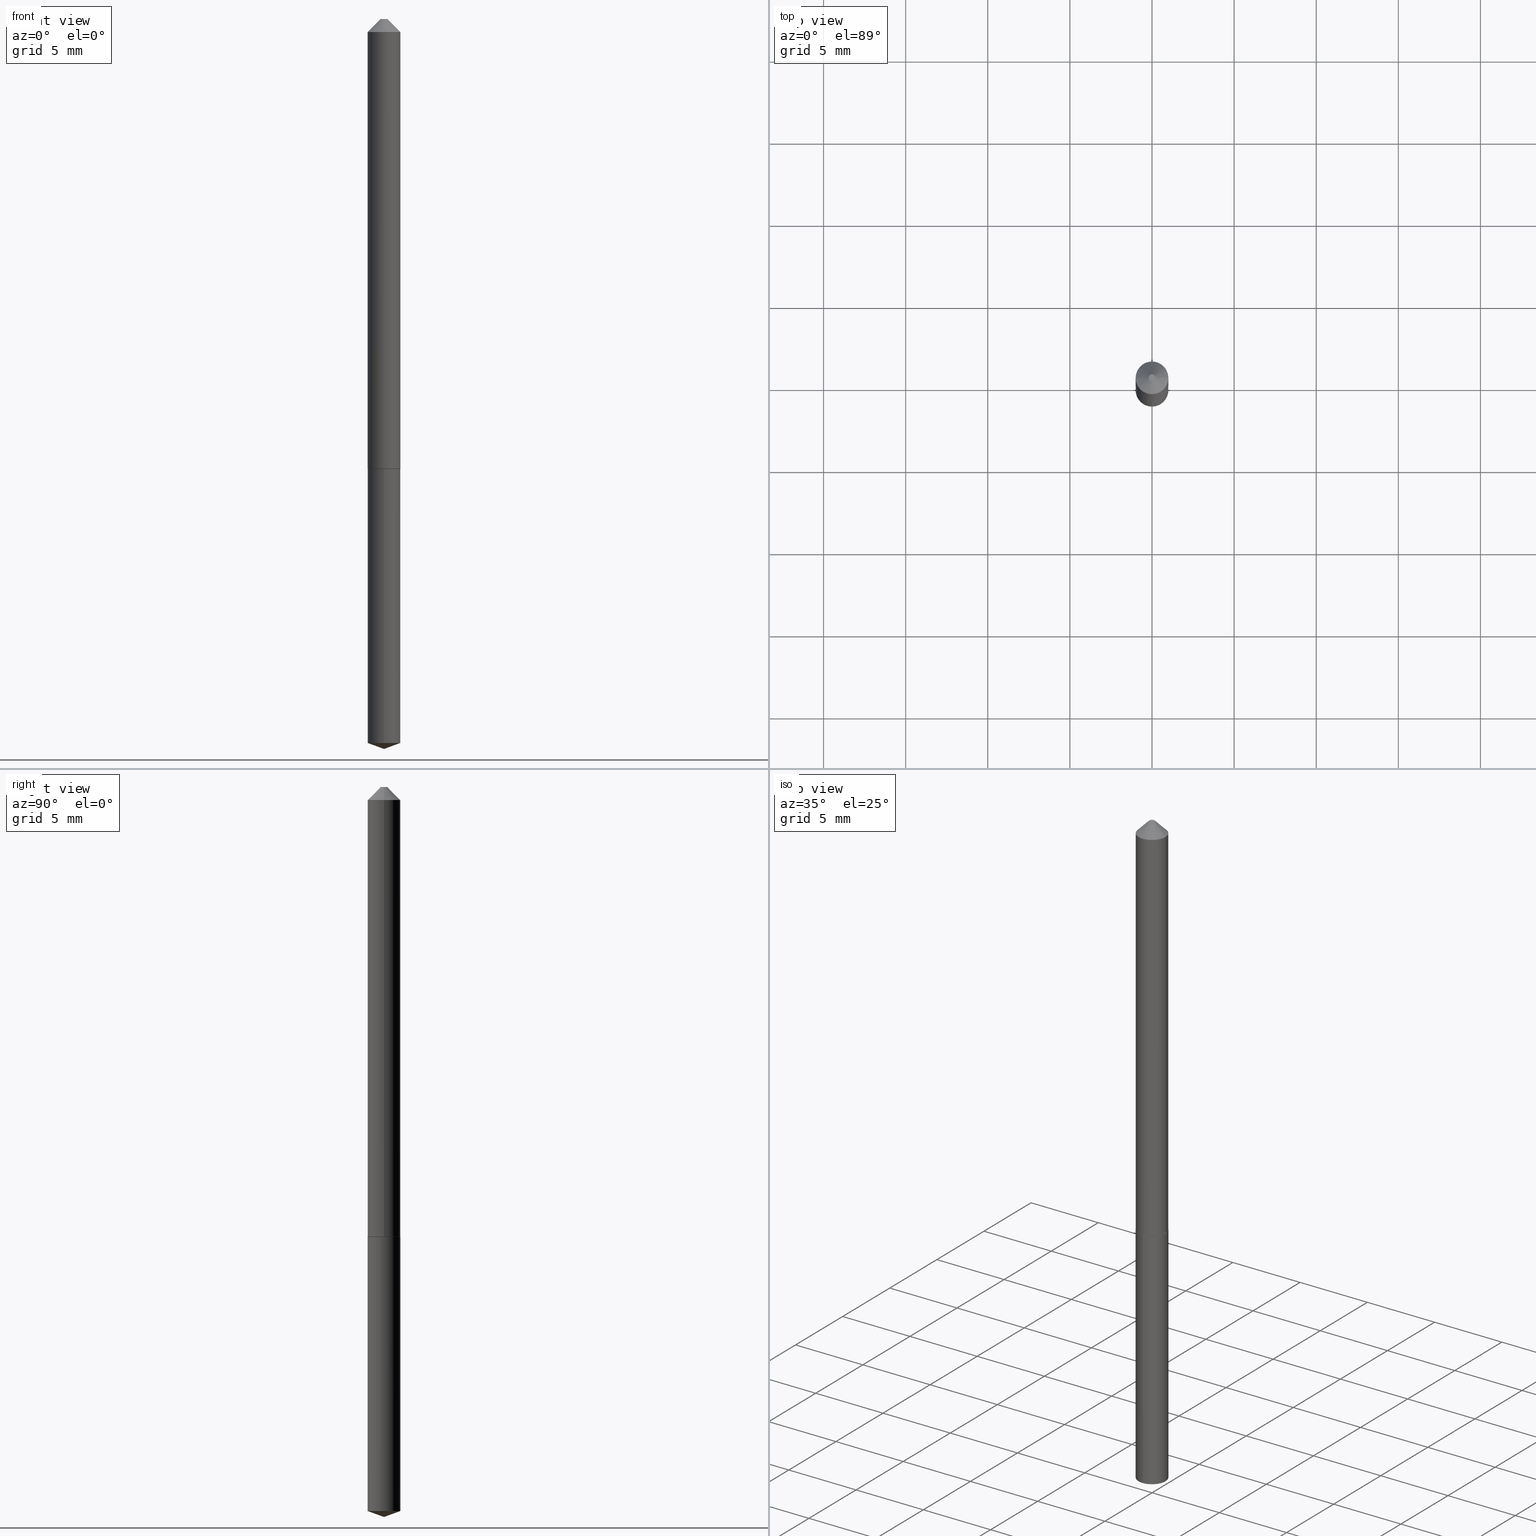
[diagram: canonical four-view strip — front | top / right | iso, engineering-drawing reading convention]
A machine part, canonical four-view strip (front | top / right | iso — engineering-drawing reading convention). The complete STEP part file that produces these views, byte-faithful:
ISO-10303-21;
HEADER;
FILE_DESCRIPTION (( 'STEP AP203' ),
    '1' );
FILE_NAME ('56047.STEP',
    '2024-04-22T20:02:25',
    ( '' ),
    ( '' ),
    'SwSTEP 2.0',
    'SolidWorks 2023',
    '' );
FILE_SCHEMA (( 'CONFIG_CONTROL_DESIGN' ));
ENDSEC;

DATA;
#1 = CARTESIAN_POINT ( 'NONE',  ( 4.279577452595067858E-29, -6.110082258758525877E-15, -1.750000000000000000 ) ) ;
#2 = DIRECTION ( 'NONE',  ( -2.445472830054324931E-29, 3.491475576433443584E-15, 1.000000000000000000 ) ) ;
#3 = AXIS2_PLACEMENT_3D ( 'NONE', #187, #189, #62 ) ;
#4 = DIRECTION ( 'NONE',  ( -0.7071067811866441621, 7.493145998870704414E-15, 0.7071067811864508723 ) ) ;
#5 = SHAPE_DEFINITION_REPRESENTATION ( #83, #373 ) ;
#6 = DIRECTION ( 'NONE',  ( 1.000000000000000000, -6.982962677686271444E-15, 0.000000000000000000 ) ) ;
#7 = APPROVAL_STATUS ( 'not_yet_approved' ) ;
#8 = FACE_OUTER_BOUND ( 'NONE', #330, .T. ) ;
#9 = EDGE_CURVE ( 'NONE', #322, #377, #338, .T. ) ;
#10 = CONICAL_SURFACE ( 'NONE', #329, 0.03925000000000000017, 0.7853981633974450594 ) ;
#11 = ORGANIZATION ( 'UNSPECIFIED', 'UNSPECIFIED', '' ) ;
#12 = FACE_OUTER_BOUND ( 'NONE', #267, .T. ) ;
#13 = PERSON_AND_ORGANIZATION_ROLE ( 'creator' ) ;
#14 = LINE ( 'NONE', #374, #354 ) ;
#15 = APPROVAL_ROLE ( '' ) ;
#16 = DIRECTION ( 'NONE',  ( -2.445472830054324931E-29, 3.491475576433443584E-15, 1.000000000000000000 ) ) ;
#17 = AXIS2_PLACEMENT_3D ( 'NONE', #348, #118, #231 ) ;
#18 = DIRECTION ( 'NONE',  ( -2.445468806185136597E-29, 3.491481338843145583E-15, 1.000000000000000000 ) ) ;
#19 = DIRECTION ( 'NONE',  ( -2.445472830054324931E-29, 3.491475576433443584E-15, 1.000000000000000000 ) ) ;
#20 = LINE ( 'NONE', #149, #75 ) ;
#21 = FACE_OUTER_BOUND ( 'NONE', #293, .T. ) ;
#22 = ORIENTED_EDGE ( 'NONE', *, *, #326, .F. ) ;
#23 = CARTESIAN_POINT ( 'NONE',  ( 2.637438107470669995E-29, -3.765562623942332293E-15, -1.078500000000000014 ) ) ;
#24 = EDGE_CURVE ( 'NONE', #352, #188, #274, .T. ) ;
#25 = FACE_OUTER_BOUND ( 'NONE', #269, .T. ) ;
#26 = ORIENTED_EDGE ( 'NONE', *, *, #119, .T. ) ;
#27 = DIRECTION ( 'NONE',  ( -6.982962677686264344E-15, -1.000000000000000000, 3.480061138425812861E-15 ) ) ;
#28 = VERTEX_POINT ( 'NONE', #40 ) ;
#29 =( LENGTH_UNIT ( ) NAMED_UNIT ( * ) SI_UNIT ( $, .METRE. ) );
#30 = AXIS2_PLACEMENT_3D ( 'NONE', #71, #223, #6 ) ;
#31 = DIRECTION ( 'NONE',  ( 1.000000000000000000, -6.982962677686266711E-15, 4.876176775795935232E-29 ) ) ;
#32 = ORIENTED_EDGE ( 'NONE', *, *, #51, .T. ) ;
#33 = ORIENTED_EDGE ( 'NONE', *, *, #144, .T. ) ;
#34 = LINE ( 'NONE', #96, #150 ) ;
#35 = EDGE_CURVE ( 'NONE', #322, #389, #38, .T. ) ;
#36 = LINE ( 'NONE', #312, #264 ) ;
#37 = COORDINATED_UNIVERSAL_TIME_OFFSET ( 5, 0, .BEHIND. ) ;
#38 = CIRCLE ( 'NONE', #30, 0.03875000000000009687 ) ;
#39 = CONICAL_SURFACE ( 'NONE', #194, 108.1684023407351560, 1.221730476396036602 ) ;
#40 = CARTESIAN_POINT ( 'NONE',  ( 2.788880237858818240E-16, 0.03924999999999394251, -1.735714168305051652 ) ) ;
#41 = CALENDAR_DATE ( 2024, 22, 4 ) ;
#42 = ADVANCED_FACE ( 'NONE', ( #43 ), #244, .T. ) ;
#43 = FACE_OUTER_BOUND ( 'NONE', #67, .T. ) ;
#44 = CARTESIAN_POINT ( 'NONE',  ( 0.000000000000000000, 0.000000000000000000, 0.000000000000000000 ) ) ;
#45 = DIRECTION ( 'NONE',  ( -6.982962677686264344E-15, -1.000000000000000000, 3.480061138425812861E-15 ) ) ;
#46 = DATE_AND_TIME ( #367, #48 ) ;
#47 = AXIS2_PLACEMENT_3D ( 'NONE', #368, #195, #45 ) ;
#48 = LOCAL_TIME ( 16, 2, 25.00000000000000000, #275 ) ;
#49 = CARTESIAN_POINT ( 'NONE',  ( 2.636215373067577193E-29, -3.763816883272910789E-15, -1.077999999999999847 ) ) ;
#50 = PERSON_AND_ORGANIZATION_ROLE ( 'design_owner' ) ;
#51 = EDGE_CURVE ( 'NONE', #389, #352, #36, .T. ) ;
#52 = CIRCLE ( 'NONE', #85, 0.03925000000000000017 ) ;
#53 = LINE ( 'NONE', #121, #82 ) ;
#54 = ORIENTED_EDGE ( 'NONE', *, *, #316, .T. ) ;
#55 = CONICAL_SURFACE ( 'NONE', #243, 108.1684023407351560, 1.221730476396036602 ) ;
#56 = CC_DESIGN_APPROVAL ( #133, ( #278 ) ) ;
#57 = ADVANCED_FACE ( 'NONE', ( #8 ), #320, .T. ) ;
#58 = VERTEX_POINT ( 'NONE', #77 ) ;
#59 = DIRECTION ( 'NONE',  ( -6.982962677686266711E-15, -1.000000000000000000, 3.475157955500665783E-15 ) ) ;
#60 = PERSON ( 'UNSPECIFIED', 'UNSPECIFIED', 'UNSPECIFIED', ('UNSPECIFIED'), ('UNSPECIFIED'), ('UNSPECIFIED') ) ;
#61 = ORIENTED_EDGE ( 'NONE', *, *, #24, .F. ) ;
#62 = DIRECTION ( 'NONE',  ( -6.982962677686264344E-15, -1.000000000000000000, 6.960122276851625723E-15 ) ) ;
#63 = VERTEX_POINT ( 'NONE', #251 ) ;
#64 = DIRECTION ( 'NONE',  ( 0.7071067811865452413, -7.319954787623248157E-15, -0.7071067811865497932 ) ) ;
#65 = DESIGN_CONTEXT ( 'detailed design', #155, 'design' ) ;
#66 = ADVANCED_FACE ( 'NONE', ( #170 ), #100, .F. ) ;
#67 = EDGE_LOOP ( 'NONE', ( #227, #131, #186, #240 ) ) ;
#68 = DIRECTION ( 'NONE',  ( 1.000000000000000000, -6.982962677686266711E-15, 0.000000000000000000 ) ) ;
#69 = CARTESIAN_POINT ( 'NONE',  ( 2.637438107470669995E-29, -3.765562623942332293E-15, -1.078500000000000014 ) ) ;
#70 = CARTESIAN_POINT ( 'NONE',  ( 4.279577528703913544E-29, -6.110082258758525877E-15, -1.750000000000000000 ) ) ;
#71 = CARTESIAN_POINT ( 'NONE',  ( 2.637438107470669434E-29, -3.765562623942332293E-15, -1.078499999999999792 ) ) ;
#72 = COORDINATED_UNIVERSAL_TIME_OFFSET ( 5, 0, .BEHIND. ) ;
#73 = DIRECTION ( 'NONE',  ( 6.982962677686265922E-15, 1.000000000000000000, -3.491475576433443584E-15 ) ) ;
#74 = CC_DESIGN_PERSON_AND_ORGANIZATION_ASSIGNMENT ( #196, #371, ( #278 ) ) ;
#75 = VECTOR ( 'NONE', #351, 39.37007874015748143 ) ;
#76 = AXIS2_PLACEMENT_3D ( 'NONE', #279, #282, #73 ) ;
#77 = CARTESIAN_POINT ( 'NONE',  ( 0.007999999999999998432, -2.166336611167769862E-16, -1.530808498924677396E-19 ) ) ;
#78 = PERSON_AND_ORGANIZATION_ROLE ( 'creator' ) ;
#79 = CARTESIAN_POINT ( 'NONE',  ( -9.199888476330237755E-28, 1.313495798900040027E-13, 37.62007874015748143 ) ) ;
#80 = DIRECTION ( 'NONE',  ( 2.438088387897960049E-29, -3.491481338843145188E-15, -1.000000000000000000 ) ) ;
#81 = DATE_AND_TIME ( #41, #104 ) ;
#82 = VECTOR ( 'NONE', #111, 39.37007874015748143 ) ;
#83 = PRODUCT_DEFINITION_SHAPE ( 'NONE', 'NONE',  #349 ) ;
#84 = ADVANCED_FACE ( 'NONE', ( #12 ), #178, .T. ) ;
#85 = AXIS2_PLACEMENT_3D ( 'NONE', #266, #363, #328 ) ;
#86 = DIRECTION ( 'NONE',  ( 1.000000000000000000, -6.982962677686265922E-15, 0.000000000000000000 ) ) ;
#87 = EDGE_LOOP ( 'NONE', ( #355, #33 ) ) ;
#88 = VERTEX_POINT ( 'NONE', #1 ) ;
#89 = CARTESIAN_POINT ( 'NONE',  ( -9.199888476330237755E-28, 1.313495798900040027E-13, 37.62007874015748143 ) ) ;
#90 = CLOSED_SHELL ( 'NONE', ( #314, #147, #84, #165, #158, #94, #57, #66 ) ) ;
#91 = ORIENTED_EDGE ( 'NONE', *, *, #316, .F. ) ;
#92 = CARTESIAN_POINT ( 'NONE',  ( 7.642090019328601786E-31, -1.091087918388490144E-16, -0.03125000000000020123 ) ) ;
#93 = ORIENTED_EDGE ( 'NONE', *, *, #259, .F. ) ;
#94 = ADVANCED_FACE ( 'NONE', ( #225 ), #173, .T. ) ;
#95 = ORIENTED_EDGE ( 'NONE', *, *, #357, .T. ) ;
#96 = CARTESIAN_POINT ( 'NONE',  ( 4.279568773109228849E-29, -6.110094688276253525E-15, -1.750000000000000000 ) ) ;
#97 = AXIS2_PLACEMENT_3D ( 'NONE', #289, #18, #31 ) ;
#98 = DIRECTION ( 'NONE',  ( 1.000000000000000000, -6.982962677686265922E-15, 0.000000000000000000 ) ) ;
#99 = DIRECTION ( 'NONE',  ( -1.000000000000000000, 6.982962677686266711E-15, 0.000000000000000000 ) ) ;
#100 = PLANE ( 'NONE',  #292 ) ;
#101 = ADVANCED_FACE ( 'NONE', ( #310 ), #276, .T. ) ;
#102 = CARTESIAN_POINT ( 'NONE',  ( 0.000000000000000000, 0.000000000000000000, 0.000000000000000000 ) ) ;
#103 = CIRCLE ( 'NONE', #174, 0.03925000000000000017 ) ;
#104 = LOCAL_TIME ( 16, 2, 25.00000000000000000, #191 ) ;
#105 = CARTESIAN_POINT ( 'NONE',  ( -0.03925000000000006956, 2.788880237858398172E-16, -1.930682022925053676E-30 ) ) ;
#106 = APPROVAL_ROLE ( '' ) ;
#107 = PRODUCT ( '56047', '56047', '', ( #281 ) ) ;
#108 = DIRECTION ( 'NONE',  ( -2.445468806185136597E-29, 3.491481338843145583E-15, 1.000000000000000000 ) ) ;
#109 = PERSON_AND_ORGANIZATION ( #60, #11 ) ;
#110 = EDGE_CURVE ( 'NONE', #352, #377, #378, .T. ) ;
#111 = DIRECTION ( 'NONE',  ( -2.445468806185136877E-29, 3.491481338843145188E-15, 1.000000000000000000 ) ) ;
#112 = CALENDAR_DATE ( 2024, 22, 4 ) ;
#113 = CLOSED_SHELL ( 'NONE', ( #101, #379, #190, #42, #200 ) ) ;
#114 = DIRECTION ( 'NONE',  ( -6.982962677686266711E-15, -1.000000000000000000, 3.475157955500665783E-15 ) ) ;
#115 = APPROVAL_PERSON_ORGANIZATION ( #171, #172, #336 ) ;
#116 = ORIENTED_EDGE ( 'NONE', *, *, #51, .F. ) ;
#117 = DIRECTION ( 'NONE',  ( 1.000000000000000000, -6.982962677686265922E-15, 4.876176775795935793E-29 ) ) ;
#118 = DIRECTION ( 'NONE',  ( -2.445468806185136597E-29, 3.491481338843145583E-15, 1.000000000000000000 ) ) ;
#119 = EDGE_CURVE ( 'NONE', #63, #188, #14, .T. ) ;
#120 = DIRECTION ( 'NONE',  ( -0.7071067811865452413, 2.468850131082233000E-15, -0.7071067811865497932 ) ) ;
#121 = CARTESIAN_POINT ( 'NONE',  ( 0.03925000000000006956, -2.740812850991864634E-16, 1.913899384499908036E-30 ) ) ;
#122 = EDGE_CURVE ( 'NONE', #28, #210, #285, .T. ) ;
#123 = VERTEX_POINT ( 'NONE', #317 ) ;
#124 = CARTESIAN_POINT ( 'NONE',  ( 3.743544432386673062E-48, -5.344789307371237567E-34, -1.530808498934197508E-19 ) ) ;
#125 = ORIENTED_EDGE ( 'NONE', *, *, #222, .T. ) ;
#126 = CARTESIAN_POINT ( 'NONE',  ( -0.03925000000000013201, -3.484928859487070232E-15, -1.077999999999999847 ) ) ;
#127 = CONICAL_SURFACE ( 'NONE', #257, 0.03925000000000013201, 0.7853981633975849475 ) ;
#128 = ORIENTED_EDGE ( 'NONE', *, *, #253, .T. ) ;
#129 = DIRECTION ( 'NONE',  ( 6.676917655467982329E-15, 0.9396926207859115365, 0.3420201433256599421 ) ) ;
#130 = CC_DESIGN_SECURITY_CLASSIFICATION ( #278, ( #258 ) ) ;
#131 = ORIENTED_EDGE ( 'NONE', *, *, #122, .T. ) ;
#132 =( CONVERSION_BASED_UNIT ( 'INCH', #388 ) LENGTH_UNIT ( ) NAMED_UNIT ( #167 ) );
#133 = APPROVAL ( #7, 'UNSPECIFIED' ) ;
#134 = ORIENTED_EDGE ( 'NONE', *, *, #242, .T. ) ;
#135 = DIRECTION ( 'NONE',  ( -2.445468806185136597E-29, 3.491481338843145583E-15, 1.000000000000000000 ) ) ;
#136 = DIRECTION ( 'NONE',  ( 1.000000000000000000, -6.982962677686266711E-15, 0.000000000000000000 ) ) ;
#137 = CIRCLE ( 'NONE', #175, 0.03925000000000000017 ) ;
#138 = EDGE_CURVE ( 'NONE', #377, #233, #53, .T. ) ;
#139 = PLANE ( 'NONE',  #76 ) ;
#140 = CARTESIAN_POINT ( 'NONE',  ( 7.642090019328601786E-31, -1.091087918388490144E-16, -0.03125000000000020123 ) ) ;
#141 = APPROVAL_DATE_TIME ( #272, #133 ) ;
#142 = PERSON_AND_ORGANIZATION ( #60, #11 ) ;
#143 = CALENDAR_DATE ( 2024, 22, 4 ) ;
#144 = EDGE_CURVE ( 'NONE', #58, #63, #193, .T. ) ;
#145 = PERSON_AND_ORGANIZATION_ROLE ( 'design_supplier' ) ;
#146 = CIRCLE ( 'NONE', #211, 0.007999999999999998432 ) ;
#147 = ADVANCED_FACE ( 'NONE', ( #340 ), #176, .T. ) ;
#148 = CARTESIAN_POINT ( 'NONE',  ( 4.244637499587423972E-29, -6.060209841065438643E-15, -1.735714168305051652 ) ) ;
#149 = CARTESIAN_POINT ( 'NONE',  ( 2.788880237858656524E-16, 0.03924999999999623235, -1.078500000000000014 ) ) ;
#150 = VECTOR ( 'NONE', #164, 39.37007874015748143 ) ;
#151 = CIRCLE ( 'NONE', #3, 0.03925000000000000017 ) ;
#152 = APPROVAL ( #226, 'UNSPECIFIED' ) ;
#153 = EDGE_LOOP ( 'NONE', ( #134, #387 ) ) ;
#154 = DIRECTION ( 'NONE',  ( 1.000000000000000000, -6.982962677686271444E-15, 0.000000000000000000 ) ) ;
#155 = APPLICATION_CONTEXT ( 'configuration controlled 3d designs of mechanical parts and assemblies' ) ;
#156 = ORIENTED_EDGE ( 'NONE', *, *, #144, .F. ) ;
#157 = CARTESIAN_POINT ( 'NONE',  ( -0.03875000000000009687, -3.487578086661181433E-15, -1.078499999999999792 ) ) ;
#158 = ADVANCED_FACE ( 'NONE', ( #21 ), #127, .T. ) ;
#159 = CIRCLE ( 'NONE', #366, 0.03925000000000000017 ) ;
#160 = ORIENTED_EDGE ( 'NONE', *, *, #273, .T. ) ;
#161 = ORIENTED_EDGE ( 'NONE', *, *, #273, .F. ) ;
#162 = CARTESIAN_POINT ( 'NONE',  ( 0.03925000000000013201, -4.037898168372097104E-15, -1.077999999999999847 ) ) ;
#163 = ORIENTED_EDGE ( 'NONE', *, *, #24, .T. ) ;
#164 = DIRECTION ( 'NONE',  ( -6.561838499445214262E-15, -0.9396926207859092051, 0.3420201433256664925 ) ) ;
#165 = ADVANCED_FACE ( 'NONE', ( #25 ), #375, .F. ) ;
#166 = CALENDAR_DATE ( 2024, 22, 4 ) ;
#167 = DIMENSIONAL_EXPONENTS ( 1.000000000000000000, 0.000000000000000000, 0.000000000000000000, 0.000000000000000000, 0.000000000000000000, 0.000000000000000000, 0.000000000000000000 ) ;
#168 = DATE_AND_TIME ( #112, #179 ) ;
#169 = DIRECTION ( 'NONE',  ( 1.000000000000000000, -6.982962677686266711E-15, 4.876176775795935232E-29 ) ) ;
#170 = FACE_OUTER_BOUND ( 'NONE', #87, .T. ) ;
#171 = PERSON_AND_ORGANIZATION ( #60, #11 ) ;
#172 = APPROVAL ( #333, 'UNSPECIFIED' ) ;
#173 = CYLINDRICAL_SURFACE ( 'NONE', #299, 0.03925000000000006956 ) ;
#174 = AXIS2_PLACEMENT_3D ( 'NONE', #23, #2, #27 ) ;
#175 = AXIS2_PLACEMENT_3D ( 'NONE', #381, #332, #68 ) ;
#176 = CYLINDRICAL_SURFACE ( 'NONE', #97, 0.03925000000000006956 ) ;
#177 = EDGE_CURVE ( 'NONE', #63, #58, #146, .T. ) ;
#178 = CONICAL_SURFACE ( 'NONE', #286, 0.03925000000000013201, 0.7853981633975849475 ) ;
#179 = LOCAL_TIME ( 16, 2, 25.00000000000000000, #72 ) ;
#180 = ORIENTED_EDGE ( 'NONE', *, *, #138, .F. ) ;
#181 = EDGE_LOOP ( 'NONE', ( #319, #163, #161, #180 ) ) ;
#182 = CARTESIAN_POINT ( 'NONE',  ( -2.740812850991435691E-16, -0.03925000000000607864, -1.735714168305051430 ) ) ;
#183 = CC_DESIGN_PERSON_AND_ORGANIZATION_ASSIGNMENT ( #252, #78, ( #258 ) ) ;
#184 = ORIENTED_EDGE ( 'NONE', *, *, #268, .F. ) ;
#185 = VECTOR ( 'NONE', #129, 39.37007874015748143 ) ;
#186 = ORIENTED_EDGE ( 'NONE', *, *, #326, .T. ) ;
#187 = CARTESIAN_POINT ( 'NONE',  ( 4.244637499587423972E-29, -6.060209841065438643E-15, -1.735714168305051652 ) ) ;
#188 = VERTEX_POINT ( 'NONE', #337 ) ;
#189 = DIRECTION ( 'NONE',  ( -2.445472830054324931E-29, 3.491475576433443584E-15, 1.000000000000000000 ) ) ;
#190 = ADVANCED_FACE ( 'NONE', ( #280 ), #55, .T. ) ;
#191 = COORDINATED_UNIVERSAL_TIME_OFFSET ( 5, 0, .BEHIND. ) ;
#192 = APPLICATION_PROTOCOL_DEFINITION ( 'international standard', 'config_control_design', 1994, #155 ) ;
#193 = CIRCLE ( 'NONE', #17, 0.007999999999999998432 ) ;
#194 = AXIS2_PLACEMENT_3D ( 'NONE', #89, #323, #59 ) ;
#195 = DIRECTION ( 'NONE',  ( -2.445472830054324931E-29, 3.491475576433443584E-15, 1.000000000000000000 ) ) ;
#196 = PERSON_AND_ORGANIZATION ( #60, #11 ) ;
#197 = PERSON_AND_ORGANIZATION ( #60, #11 ) ;
#198 = LOCAL_TIME ( 16, 2, 25.00000000000000000, #306 ) ;
#199 = ORIENTED_EDGE ( 'NONE', *, *, #357, .F. ) ;
#200 = ADVANCED_FACE ( 'NONE', ( #343 ), #139, .F. ) ;
#201 = ORIENTED_EDGE ( 'NONE', *, *, #35, .T. ) ;
#202 = ORIENTED_EDGE ( 'NONE', *, *, #259, .T. ) ;
#203 = AXIS2_PLACEMENT_3D ( 'NONE', #148, #376, #370 ) ;
#204 = CARTESIAN_POINT ( 'NONE',  ( 2.636215373067577193E-29, -3.763816883272910789E-15, -1.077999999999999847 ) ) ;
#205 = ORIENTED_EDGE ( 'NONE', *, *, #345, .F. ) ;
#206 = DIRECTION ( 'NONE',  ( -2.445468806185136597E-29, 3.491481338843145583E-15, 1.000000000000000000 ) ) ;
#207 = EDGE_CURVE ( 'NONE', #28, #350, #20, .T. ) ;
#208 = ORIENTED_EDGE ( 'NONE', *, *, #242, .F. ) ;
#209 = CARTESIAN_POINT ( 'NONE',  ( 0.03875000000000009687, -4.036152427702675601E-15, -1.078499999999999792 ) ) ;
#210 = VERTEX_POINT ( 'NONE', #182 ) ;
#211 = AXIS2_PLACEMENT_3D ( 'NONE', #124, #369, #284 ) ;
#212 = ORIENTED_EDGE ( 'NONE', *, *, #9, .F. ) ;
#213 = CARTESIAN_POINT ( 'NONE',  ( -2.740812850991594942E-16, -0.03925000000000376105, -1.078499999999999792 ) ) ;
#214 = CC_DESIGN_DATE_AND_TIME_ASSIGNMENT ( #224, #339, ( #349 ) ) ;
#215 = CARTESIAN_POINT ( 'NONE',  ( 1.871772216193336531E-48, -2.672394653685618784E-34, -7.654042494670987541E-20 ) ) ;
#216 = CARTESIAN_POINT ( 'NONE',  ( 0.03925000000000000017, -3.831900769380349724E-16, -0.03125000000000020123 ) ) ;
#217 = CARTESIAN_POINT ( 'NONE',  ( 0.03925000000000013201, -4.037898168372097104E-15, -1.077999999999999847 ) ) ;
#218 = DIRECTION ( 'NONE',  ( 1.000000000000000000, 0.000000000000000000, 0.000000000000000000 ) ) ;
#219 = APPROVAL_DATE_TIME ( #46, #172 ) ;
#220 = AXIS2_PLACEMENT_3D ( 'NONE', #270, #236, #239 ) ;
#221 = AXIS2_PLACEMENT_3D ( 'NONE', #44, #308, #218 ) ;
#222 = EDGE_CURVE ( 'NONE', #58, #233, #304, .T. ) ;
#223 = DIRECTION ( 'NONE',  ( -2.445468806185136597E-29, 3.491481338843145583E-15, 1.000000000000000000 ) ) ;
#224 = DATE_AND_TIME ( #143, #198 ) ;
#225 = FACE_OUTER_BOUND ( 'NONE', #358, .T. ) ;
#226 = APPROVAL_STATUS ( 'not_yet_approved' ) ;
#227 = ORIENTED_EDGE ( 'NONE', *, *, #207, .F. ) ;
#228 = AXIS2_PLACEMENT_3D ( 'NONE', #256, #344, #86 ) ;
#229 = AXIS2_PLACEMENT_3D ( 'NONE', #294, #206, #154 ) ;
#230 = DIRECTION ( 'NONE',  ( -6.982962677686264344E-15, -1.000000000000000000, 3.480061138425812861E-15 ) ) ;
#231 = DIRECTION ( 'NONE',  ( 1.000000000000000000, -6.982962677686266711E-15, 4.876357825096174133E-29 ) ) ;
#232 = EDGE_LOOP ( 'NONE', ( #156, #125, #160, #301 ) ) ;
#233 = VERTEX_POINT ( 'NONE', #216 ) ;
#234 = FACE_OUTER_BOUND ( 'NONE', #232, .T. ) ;
#235 = ORIENTED_EDGE ( 'NONE', *, *, #9, .T. ) ;
#236 = DIRECTION ( 'NONE',  ( -2.445468806185136597E-29, 3.491481338843145583E-15, 1.000000000000000000 ) ) ;
#237 = MANIFOLD_SOLID_BREP ( 'Body-Move/Copy2[2]', #90 ) ;
#238 = ORIENTED_EDGE ( 'NONE', *, *, #110, .T. ) ;
#239 = DIRECTION ( 'NONE',  ( 1.000000000000000000, -6.982962677686265922E-15, 0.000000000000000000 ) ) ;
#240 = ORIENTED_EDGE ( 'NONE', *, *, #288, .F. ) ;
#241 =( NAMED_UNIT ( * ) SI_UNIT ( $, .STERADIAN. ) SOLID_ANGLE_UNIT ( ) );
#242 = EDGE_CURVE ( 'NONE', #123, #350, #103, .T. ) ;
#243 = AXIS2_PLACEMENT_3D ( 'NONE', #79, #16, #114 ) ;
#244 = CYLINDRICAL_SURFACE ( 'NONE', #47, 0.03925000000000000017 ) ;
#245 = LINE ( 'NONE', #70, #185 ) ;
#246 = CC_DESIGN_APPROVAL ( #172, ( #349 ) ) ;
#247 = DIRECTION ( 'NONE',  ( 2.445468806185136597E-29, -3.491481338843145583E-15, -1.000000000000000000 ) ) ;
#248 = CC_DESIGN_PERSON_AND_ORGANIZATION_ASSIGNMENT ( #109, #50, ( #107 ) ) ;
#249 = APPROVAL_DATE_TIME ( #81, #152 ) ;
#250 = VECTOR ( 'NONE', #305, 39.37007874015748143 ) ;
#251 = CARTESIAN_POINT ( 'NONE',  ( -0.007999999999999998432, 1.104180973409135397E-16, -1.530808498940009002E-19 ) ) ;
#252 = PERSON_AND_ORGANIZATION ( #60, #11 ) ;
#253 = EDGE_CURVE ( 'NONE', #88, #210, #34, .T. ) ;
#254 = SECURITY_CLASSIFICATION_LEVEL ( 'unclassified' ) ;
#255 = AXIS2_PLACEMENT_3D ( 'NONE', #140, #247, #364 ) ;
#256 = CARTESIAN_POINT ( 'NONE',  ( 2.636215373067577193E-29, -3.763816883272910789E-15, -1.077999999999999847 ) ) ;
#257 = AXIS2_PLACEMENT_3D ( 'NONE', #204, #382, #295 ) ;
#258 = PRODUCT_DEFINITION_FORMATION_WITH_SPECIFIED_SOURCE ( 'ANY', '', #107, .NOT_KNOWN. ) ;
#259 = EDGE_CURVE ( 'NONE', #88, #28, #245, .T. ) ;
#260 = ORIENTED_EDGE ( 'NONE', *, *, #253, .F. ) ;
#261 = LINE ( 'NONE', #213, #347 ) ;
#262 = CARTESIAN_POINT ( 'NONE',  ( 2.637438107470669995E-29, -3.765562623942332293E-15, -1.078500000000000014 ) ) ;
#263 = ORIENTED_EDGE ( 'NONE', *, *, #222, .F. ) ;
#264 = VECTOR ( 'NONE', #4, 39.37007874015748143 ) ;
#265 = ORIENTED_EDGE ( 'NONE', *, *, #35, .F. ) ;
#266 = CARTESIAN_POINT ( 'NONE',  ( 2.637438107470669995E-29, -3.765562623942332293E-15, -1.078500000000000014 ) ) ;
#267 = EDGE_LOOP ( 'NONE', ( #201, #32, #184, #212 ) ) ;
#268 = EDGE_CURVE ( 'NONE', #377, #352, #318, .T. ) ;
#269 = EDGE_LOOP ( 'NONE', ( #265, #91 ) ) ;
#270 = CARTESIAN_POINT ( 'NONE',  ( 2.636215373067577193E-29, -3.763816883272910789E-15, -1.077999999999999847 ) ) ;
#271 = DIRECTION ( 'NONE',  ( 0.7071067811866441621, -2.468850131083269169E-15, 0.7071067811864508723 ) ) ;
#272 = DATE_AND_TIME ( #166, #300 ) ;
#273 = EDGE_CURVE ( 'NONE', #233, #188, #159, .T. ) ;
#274 = LINE ( 'NONE', #105, #250 ) ;
#275 = COORDINATED_UNIVERSAL_TIME_OFFSET ( 5, 0, .BEHIND. ) ;
#276 = CYLINDRICAL_SURFACE ( 'NONE', #385, 0.03925000000000000017 ) ;
#277 = APPLICATION_PROTOCOL_DEFINITION ( 'international standard', 'config_control_design', 1994, #315 ) ;
#278 = SECURITY_CLASSIFICATION ( '', '', #254 ) ;
#279 = CARTESIAN_POINT ( 'NONE',  ( 2.637438107470669995E-29, -3.765562623942332293E-15, -1.078500000000000014 ) ) ;
#280 = FACE_OUTER_BOUND ( 'NONE', #360, .T. ) ;
#281 = MECHANICAL_CONTEXT ( 'NONE', #315, 'mechanical' ) ;
#282 = DIRECTION ( 'NONE',  ( 2.445472830054324650E-29, -3.491475576433443584E-15, -1.000000000000000000 ) ) ;
#283 = CC_DESIGN_PERSON_AND_ORGANIZATION_ASSIGNMENT ( #142, #13, ( #349 ) ) ;
#284 = DIRECTION ( 'NONE',  ( 1.000000000000000000, -6.982962677686266711E-15, 4.876357825096174133E-29 ) ) ;
#285 = CIRCLE ( 'NONE', #203, 0.03925000000000000017 ) ;
#286 = AXIS2_PLACEMENT_3D ( 'NONE', #49, #108, #98 ) ;
#287 = CC_DESIGN_APPROVAL ( #152, ( #258 ) ) ;
#288 = EDGE_CURVE ( 'NONE', #350, #123, #52, .T. ) ;
#289 = CARTESIAN_POINT ( 'NONE',  ( 0.000000000000000000, 0.000000000000000000, 0.000000000000000000 ) ) ;
#290 = ORIENTED_EDGE ( 'NONE', *, *, #122, .F. ) ;
#291 = PRODUCT_RELATED_PRODUCT_CATEGORY ( 'detail', '', ( #107 ) ) ;
#292 = AXIS2_PLACEMENT_3D ( 'NONE', #215, #80, #362 ) ;
#293 = EDGE_LOOP ( 'NONE', ( #116, #54, #235, #296 ) ) ;
#294 = CARTESIAN_POINT ( 'NONE',  ( 2.637438107470669434E-29, -3.765562623942332293E-15, -1.078499999999999792 ) ) ;
#295 = DIRECTION ( 'NONE',  ( 1.000000000000000000, -6.982962677686265922E-15, 0.000000000000000000 ) ) ;
#296 = ORIENTED_EDGE ( 'NONE', *, *, #110, .F. ) ;
#297 = DIRECTION ( 'NONE',  ( -2.445468806185136597E-29, 3.491481338843145583E-15, 1.000000000000000000 ) ) ;
#298 = EDGE_LOOP ( 'NONE', ( #95, #327, #208, #22 ) ) ;
#299 = AXIS2_PLACEMENT_3D ( 'NONE', #102, #135, #169 ) ;
#300 = LOCAL_TIME ( 16, 2, 25.00000000000000000, #37 ) ;
#301 = ORIENTED_EDGE ( 'NONE', *, *, #119, .F. ) ;
#302 =( NAMED_UNIT ( * ) PLANE_ANGLE_UNIT ( ) SI_UNIT ( $, .RADIAN. ) );
#303 = ORIENTED_EDGE ( 'NONE', *, *, #138, .T. ) ;
#304 = LINE ( 'NONE', #359, #334 ) ;
#305 = DIRECTION ( 'NONE',  ( -2.445468806185136877E-29, 3.491481338843145188E-15, 1.000000000000000000 ) ) ;
#306 = COORDINATED_UNIVERSAL_TIME_OFFSET ( 5, 0, .BEHIND. ) ;
#307 = AXIS2_PLACEMENT_3D ( 'NONE', #262, #372, #117 ) ;
#308 = DIRECTION ( 'NONE',  ( 0.000000000000000000, 0.000000000000000000, 1.000000000000000000 ) ) ;
#309 = APPROVAL_PERSON_ORGANIZATION ( #311, #133, #106 ) ;
#310 = FACE_OUTER_BOUND ( 'NONE', #298, .T. ) ;
#311 = PERSON_AND_ORGANIZATION ( #60, #11 ) ;
#312 = CARTESIAN_POINT ( 'NONE',  ( -0.03925000000000013201, -3.484928859487070232E-15, -1.077999999999999847 ) ) ;
#313 = PERSON_AND_ORGANIZATION ( #60, #11 ) ;
#314 = ADVANCED_FACE ( 'NONE', ( #234 ), #10, .T. ) ;
#315 = APPLICATION_CONTEXT ( 'configuration controlled 3d designs of mechanical parts and assemblies' ) ;
#316 = EDGE_CURVE ( 'NONE', #389, #322, #346, .T. ) ;
#317 = CARTESIAN_POINT ( 'NONE',  ( -2.740812850991594942E-16, -0.03925000000000376105, -1.078499999999999792 ) ) ;
#318 = CIRCLE ( 'NONE', #220, 0.03925000000000013201 ) ;
#319 = ORIENTED_EDGE ( 'NONE', *, *, #268, .T. ) ;
#320 = CONICAL_SURFACE ( 'NONE', #255, 0.03925000000000000017, 0.7853981633974450594 ) ;
#321 = UNCERTAINTY_MEASURE_WITH_UNIT (LENGTH_MEASURE( 1.000000000000000082E-05 ), #132, 'distance_accuracy_value', 'NONE');
#322 = VERTEX_POINT ( 'NONE', #209 ) ;
#323 = DIRECTION ( 'NONE',  ( -2.445472830054324931E-29, 3.491475576433443584E-15, 1.000000000000000000 ) ) ;
#324 = EDGE_LOOP ( 'NONE', ( #260, #202, #199 ) ) ;
#325 = CARTESIAN_POINT ( 'NONE',  ( 2.788880237858818240E-16, 0.03924999999999623235, -1.078500000000000014 ) ) ;
#326 = EDGE_CURVE ( 'NONE', #210, #123, #261, .T. ) ;
#327 = ORIENTED_EDGE ( 'NONE', *, *, #207, .T. ) ;
#328 = DIRECTION ( 'NONE',  ( -6.982962677686264344E-15, -1.000000000000000000, 3.480061138425812861E-15 ) ) ;
#329 = AXIS2_PLACEMENT_3D ( 'NONE', #92, #390, #99 ) ;
#330 = EDGE_LOOP ( 'NONE', ( #263, #380, #26, #384 ) ) ;
#331 = DIRECTION ( 'NONE',  ( -2.445472830054324931E-29, 3.491475576433443584E-15, 1.000000000000000000 ) ) ;
#332 = DIRECTION ( 'NONE',  ( -2.445468806185136597E-29, 3.491481338843145583E-15, 1.000000000000000000 ) ) ;
#333 = APPROVAL_STATUS ( 'not_yet_approved' ) ;
#334 = VECTOR ( 'NONE', #64, 39.37007874015748143 ) ;
#335 = APPROVAL_PERSON_ORGANIZATION ( #313, #152, #15 ) ;
#336 = APPROVAL_ROLE ( '' ) ;
#337 = CARTESIAN_POINT ( 'NONE',  ( -0.03925000000000000017, -1.657574813770038402E-15, -0.03125000000000020123 ) ) ;
#338 = LINE ( 'NONE', #217, #342 ) ;
#339 = DATE_TIME_ROLE ( 'creation_date' ) ;
#340 = FACE_OUTER_BOUND ( 'NONE', #181, .T. ) ;
#341 = DATE_TIME_ROLE ( 'classification_date' ) ;
#342 = VECTOR ( 'NONE', #271, 39.37007874015748143 ) ;
#343 = FACE_OUTER_BOUND ( 'NONE', #153, .T. ) ;
#344 = DIRECTION ( 'NONE',  ( -2.445468806185136597E-29, 3.491481338843145583E-15, 1.000000000000000000 ) ) ;
#345 = EDGE_CURVE ( 'NONE', #188, #233, #137, .T. ) ;
#346 = CIRCLE ( 'NONE', #229, 0.03875000000000009687 ) ;
#347 = VECTOR ( 'NONE', #331, 39.37007874015748143 ) ;
#348 = CARTESIAN_POINT ( 'NONE',  ( 3.743544432386673062E-48, -5.344789307371237567E-34, -1.530808498934197508E-19 ) ) ;
#349 = PRODUCT_DEFINITION ( 'UNKNOWN', '', #258, #65 ) ;
#350 = VERTEX_POINT ( 'NONE', #325 ) ;
#351 = DIRECTION ( 'NONE',  ( -2.445472830054324931E-29, 3.491475576433443584E-15, 1.000000000000000000 ) ) ;
#352 = VERTEX_POINT ( 'NONE', #126 ) ;
#353 = FACE_OUTER_BOUND ( 'NONE', #324, .T. ) ;
#354 = VECTOR ( 'NONE', #120, 39.37007874015748143 ) ;
#355 = ORIENTED_EDGE ( 'NONE', *, *, #177, .T. ) ;
#356 = CARTESIAN_POINT ( 'NONE',  ( 7.642090019328601786E-31, -1.091087918388490144E-16, -0.03125000000000020123 ) ) ;
#357 = EDGE_CURVE ( 'NONE', #210, #28, #151, .T. ) ;
#358 = EDGE_LOOP ( 'NONE', ( #61, #238, #303, #205 ) ) ;
#359 = CARTESIAN_POINT ( 'NONE',  ( 0.03925000000000000017, -3.783833382513816186E-16, -0.03125000000000020123 ) ) ;
#360 = EDGE_LOOP ( 'NONE', ( #93, #128, #290 ) ) ;
#361 = CC_DESIGN_PERSON_AND_ORGANIZATION_ASSIGNMENT ( #197, #145, ( #258 ) ) ;
#362 = DIRECTION ( 'NONE',  ( -1.000000000000000000, 6.982962677686265922E-15, -4.876176775795935793E-29 ) ) ;
#363 = DIRECTION ( 'NONE',  ( -2.445472830054324931E-29, 3.491475576433443584E-15, 1.000000000000000000 ) ) ;
#364 = DIRECTION ( 'NONE',  ( -1.000000000000000000, 6.982962677686266711E-15, 0.000000000000000000 ) ) ;
#365 = MANIFOLD_SOLID_BREP ( 'Body-Move/Copy2[1]', #113 ) ;
#366 = AXIS2_PLACEMENT_3D ( 'NONE', #356, #297, #136 ) ;
#367 = CALENDAR_DATE ( 2024, 22, 4 ) ;
#368 = CARTESIAN_POINT ( 'NONE',  ( 2.637438107470669995E-29, -3.765562623942332293E-15, -1.078500000000000014 ) ) ;
#369 = DIRECTION ( 'NONE',  ( -2.445468806185136597E-29, 3.491481338843145583E-15, 1.000000000000000000 ) ) ;
#370 = DIRECTION ( 'NONE',  ( -6.982962677686264344E-15, -1.000000000000000000, 6.960122276851625723E-15 ) ) ;
#371 = PERSON_AND_ORGANIZATION_ROLE ( 'classification_officer' ) ;
#372 = DIRECTION ( 'NONE',  ( -2.438088387897960049E-29, 3.491481338843145188E-15, 1.000000000000000000 ) ) ;
#373 = ADVANCED_BREP_SHAPE_REPRESENTATION ( '56047', ( #365, #237, #221 ), #386 ) ;
#374 = CARTESIAN_POINT ( 'NONE',  ( -0.03925000000000000017, 1.649724932603369437E-16, -0.03125000000000020123 ) ) ;
#375 = PLANE ( 'NONE',  #307 ) ;
#376 = DIRECTION ( 'NONE',  ( -2.445472830054324931E-29, 3.491475576433443584E-15, 1.000000000000000000 ) ) ;
#377 = VERTEX_POINT ( 'NONE', #162 ) ;
#378 = CIRCLE ( 'NONE', #228, 0.03925000000000013201 ) ;
#379 = ADVANCED_FACE ( 'NONE', ( #353 ), #39, .T. ) ;
#380 = ORIENTED_EDGE ( 'NONE', *, *, #177, .F. ) ;
#381 = CARTESIAN_POINT ( 'NONE',  ( 7.642090019328601786E-31, -1.091087918388490144E-16, -0.03125000000000020123 ) ) ;
#382 = DIRECTION ( 'NONE',  ( -2.445468806185136597E-29, 3.491481338843145583E-15, 1.000000000000000000 ) ) ;
#383 = CC_DESIGN_DATE_AND_TIME_ASSIGNMENT ( #168, #341, ( #278 ) ) ;
#384 = ORIENTED_EDGE ( 'NONE', *, *, #345, .T. ) ;
#385 = AXIS2_PLACEMENT_3D ( 'NONE', #69, #19, #230 ) ;
#386 =( GEOMETRIC_REPRESENTATION_CONTEXT ( 3 ) GLOBAL_UNCERTAINTY_ASSIGNED_CONTEXT ( ( #321 ) ) GLOBAL_UNIT_ASSIGNED_CONTEXT ( ( #132, #302, #241 ) ) REPRESENTATION_CONTEXT ( 'NONE', 'WORKASPACE' ) );
#387 = ORIENTED_EDGE ( 'NONE', *, *, #288, .T. ) ;
#388 = LENGTH_MEASURE_WITH_UNIT ( LENGTH_MEASURE( 0.02539999999999999897 ), #29 );
#389 = VERTEX_POINT ( 'NONE', #157 ) ;
#390 = DIRECTION ( 'NONE',  ( 2.445468806185136597E-29, -3.491481338843145583E-15, -1.000000000000000000 ) ) ;
ENDSEC;
END-ISO-10303-21;
